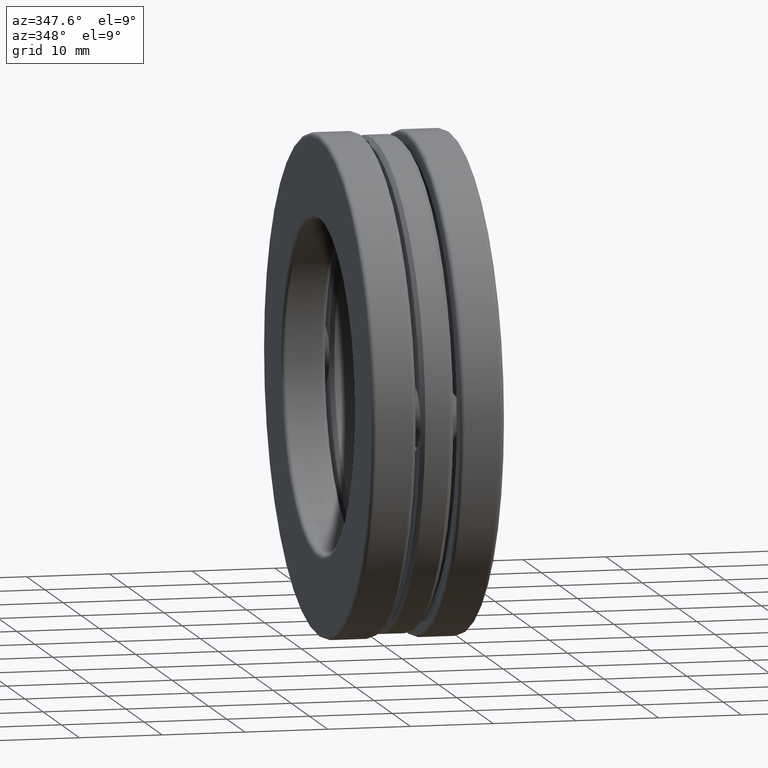
[diagram: clean part render]
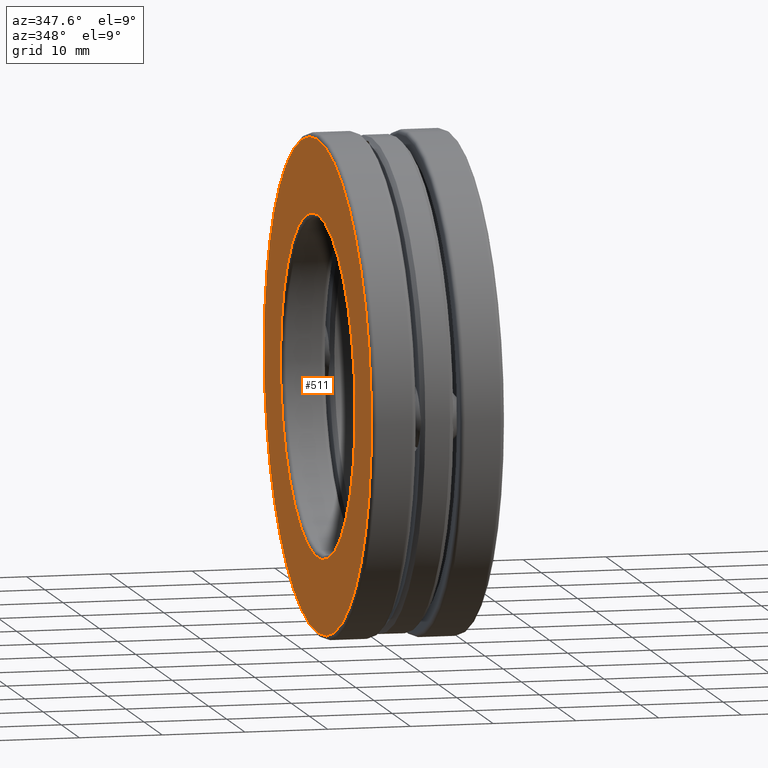
[diagram: same view with one face highlighted and labeled with its STEP entity id]
A machine part, auxiliary view. The second image highlights one B-rep face of the part: STEP entity #511.
In plain terms, the highlighted planar face has unit normal (1, 0, 0).
Its self-contained STEP definition (entity closure, byte-faithful):
#14 = CARTESIAN_POINT ( 'NONE',  ( -0.3150000000000000600, -6.085799985885728500E-017, 0.0000000000000000000 ) ) ;
#46 = AXIS2_PLACEMENT_3D ( 'NONE', #978, #503, #218 ) ;
#102 = DIRECTION ( 'NONE',  ( 1.000000000000000000, 0.0000000000000000000, 0.0000000000000000000 ) ) ;
#128 = VERTEX_POINT ( 'NONE', #142 ) ;
#142 = CARTESIAN_POINT ( 'NONE',  ( -0.3150000000000000000, 0.0000000000000000000, 0.8075000000000001100 ) ) ;
#161 = DIRECTION ( 'NONE',  ( -1.000000000000000000, -0.0000000000000000000, -0.0000000000000000000 ) ) ;
#218 = DIRECTION ( 'NONE',  ( 0.0000000000000000000, 0.0000000000000000000, 1.000000000000000000 ) ) ;
#236 = EDGE_LOOP ( 'NONE', ( #371 ) ) ;
#262 = CARTESIAN_POINT ( 'NONE',  ( -0.3150000000000000600, 0.0000000000000000000, 0.0000000000000000000 ) ) ;
#279 = EDGE_CURVE ( 'NONE', #822, #822, #667, .T. ) ;
#359 = EDGE_LOOP ( 'NONE', ( #1076 ) ) ;
#371 = ORIENTED_EDGE ( 'NONE', *, *, #1054, .F. ) ;
#449 = FACE_OUTER_BOUND ( 'NONE', #359, .T. ) ;
#503 = DIRECTION ( 'NONE',  ( -1.000000000000000000, -0.0000000000000000000, -0.0000000000000000000 ) ) ;
#511 = ADVANCED_FACE ( 'NONE', ( #1173, #449 ), #1137, .F. ) ;
#526 = AXIS2_PLACEMENT_3D ( 'NONE', #14, #102, #852 ) ;
#547 = AXIS2_PLACEMENT_3D ( 'NONE', #262, #161, #916 ) ;
#667 = CIRCLE ( 'NONE', #547, 1.161000000000000300 ) ;
#812 = CARTESIAN_POINT ( 'NONE',  ( -0.3150000000000000600, 0.0000000000000000000, 1.161000000000000300 ) ) ;
#822 = VERTEX_POINT ( 'NONE', #812 ) ;
#852 = DIRECTION ( 'NONE',  ( 0.0000000000000000000, 0.0000000000000000000, -1.000000000000000000 ) ) ;
#916 = DIRECTION ( 'NONE',  ( 0.0000000000000000000, 0.0000000000000000000, 1.000000000000000000 ) ) ;
#970 = CIRCLE ( 'NONE', #46, 0.8075000000000001100 ) ;
#978 = CARTESIAN_POINT ( 'NONE',  ( -0.3150000000000000000, 0.0000000000000000000, 0.0000000000000000000 ) ) ;
#1054 = EDGE_CURVE ( 'NONE', #128, #128, #970, .T. ) ;
#1076 = ORIENTED_EDGE ( 'NONE', *, *, #279, .T. ) ;
#1137 = PLANE ( 'NONE',  #526 ) ;
#1173 = FACE_BOUND ( 'NONE', #236, .T. ) ;